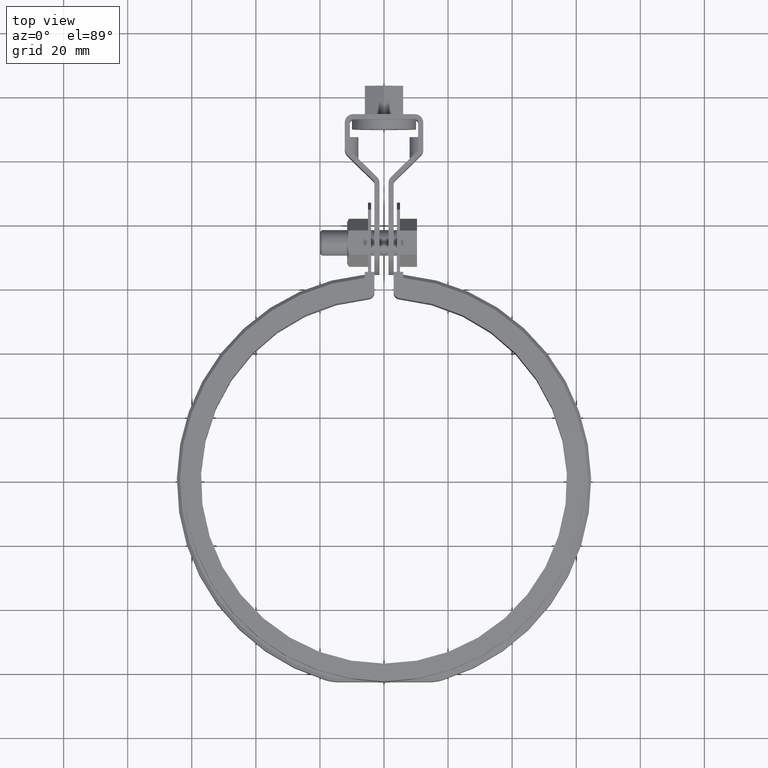
[diagram: clean part render]
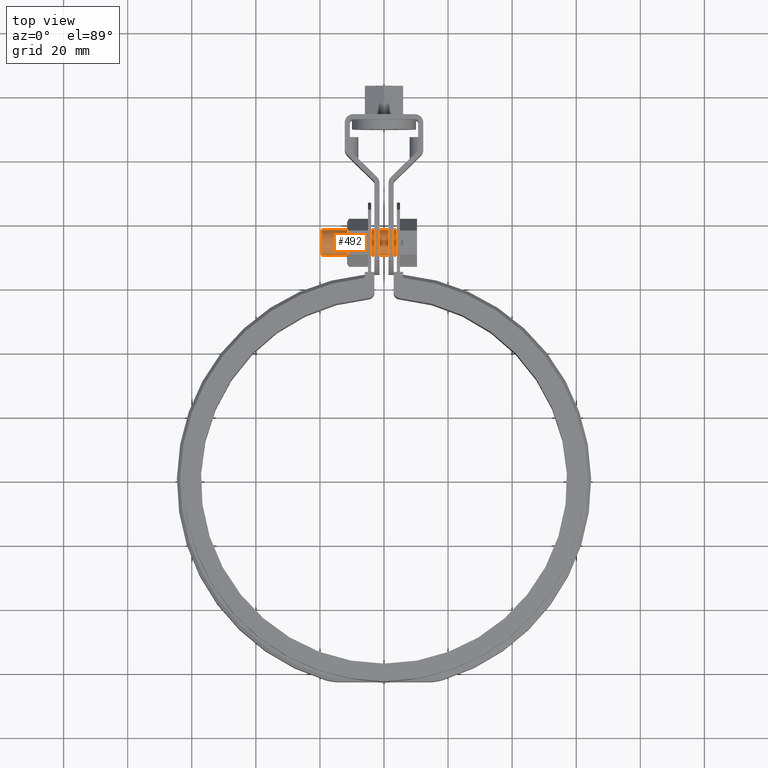
[diagram: same view with one face highlighted and labeled with its STEP entity id]
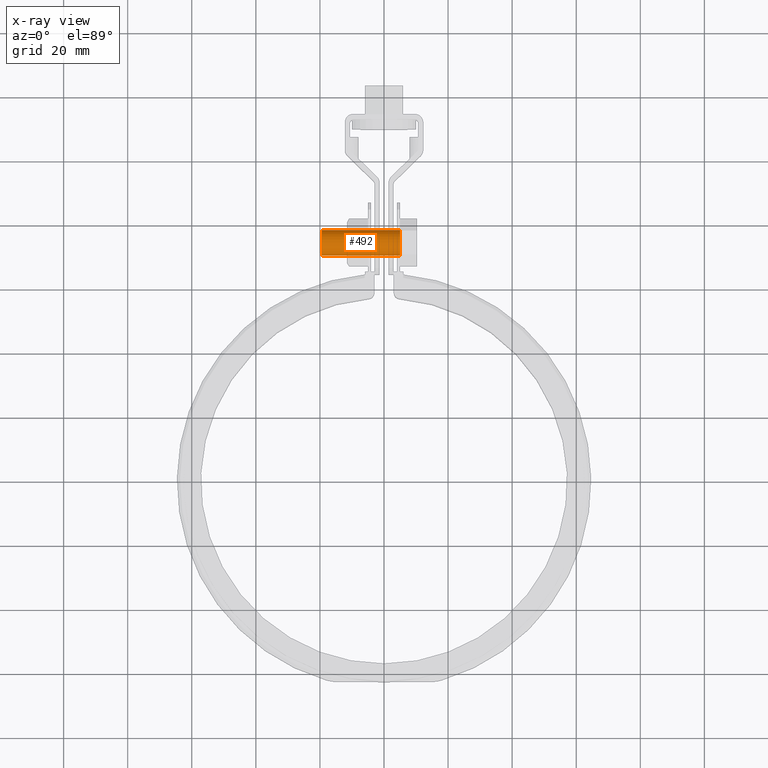
[diagram: x-ray of the same camera — body ghosted, the highlighted face saturated]
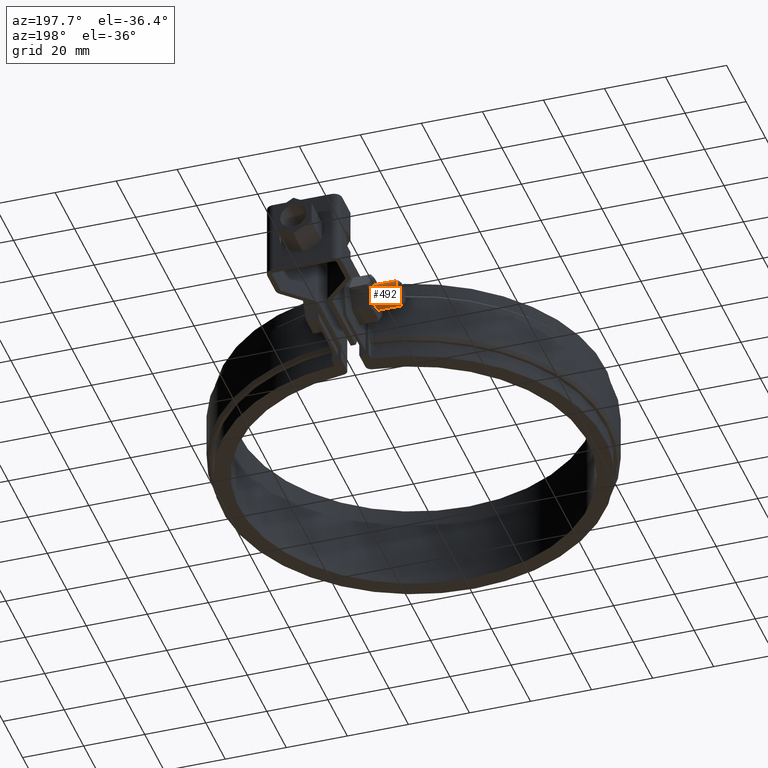
[diagram: same view with one face highlighted and labeled with its STEP entity id]
A machine part, top view. The second image highlights one B-rep face of the part: STEP entity #492.
The next image is the same camera in x-ray: the body ghosted, the highlighted face saturated — about 0% of this face is hidden behind the body in this view.
A second angle (auxiliary view) of the same face is appended — the face is thin or edge-on in the first view.
In plain terms, the highlighted cylindrical surface (bore or boss wall) has radius 4 mm, axis along (1, 0, 0).
Its self-contained STEP definition (entity closure, byte-faithful):
#492 = ADVANCED_FACE( '', ( #905, #906 ), #907, .T. );
#905 = FACE_OUTER_BOUND( '', #1907, .T. );
#906 = FACE_OUTER_BOUND( '', #1908, .T. );
#907 = CYLINDRICAL_SURFACE( '', #1909, 3.99999999999983 );
#1907 = EDGE_LOOP( '', ( #3930 ) );
#1908 = EDGE_LOOP( '', ( #3931 ) );
#1909 = AXIS2_PLACEMENT_3D( '', #3932, #3933, #3934 );
#3930 = ORIENTED_EDGE( '', *, *, #4654, .T. );
#3931 = ORIENTED_EDGE( '', *, *, #4648, .F. );
#3932 = CARTESIAN_POINT( '', ( 16.2273837494962, 74.4418259641773, -7.38248293787379E-010 ) );
#3933 = DIRECTION( '', ( 1.00000000000000, 2.56408650926554E-013, 1.69176841845792E-013 ) );
#3934 = DIRECTION( '', ( -1.69176841845792E-013, 1.15562661397942E-016, 1.00000000000000 ) );
#4648 = EDGE_CURVE( '', #5541, #5541, #5542, .F. );
#4654 = EDGE_CURVE( '', #5551, #5551, #5552, .T. );
#5541 = VERTEX_POINT( '', #8539 );
#5542 = CIRCLE( '', #8540, 3.99999999999983 );
#5551 = VERTEX_POINT( '', #8554 );
#5552 = CIRCLE( '', #8555, 3.99999999999983 );
#8539 = CARTESIAN_POINT( '', ( 4.99999999999932, 74.4418259641744, 3.99999999925968 ) );
#8540 = AXIS2_PLACEMENT_3D( '', #9421, #9422, #9423 );
#8554 = CARTESIAN_POINT( '', ( -19.3749999999972, 74.4418259641681, -4.00000000074410 ) );
#8555 = AXIS2_PLACEMENT_3D( '', #9429, #9430, #9431 );
#9421 = CARTESIAN_POINT( '', ( 5.00000000000000, 74.4418259641744, -7.40147707112309E-010 ) );
#9422 = DIRECTION( '', ( -1.00000000000000, -2.56408650926554E-013, -1.69176841845792E-013 ) );
#9423 = DIRECTION( '', ( -1.69176841845792E-013, 1.15562661397942E-016, 1.00000000000000 ) );
#9429 = CARTESIAN_POINT( '', ( -19.3749999999979, 74.4418259641681, -7.44271392632300E-010 ) );
#9430 = DIRECTION( '', ( 1.00000000000000, 2.56408650926554E-013, 1.69176841845792E-013 ) );
#9431 = DIRECTION( '', ( 1.69176841845792E-013, -1.15562661397942E-016, -1.00000000000000 ) );